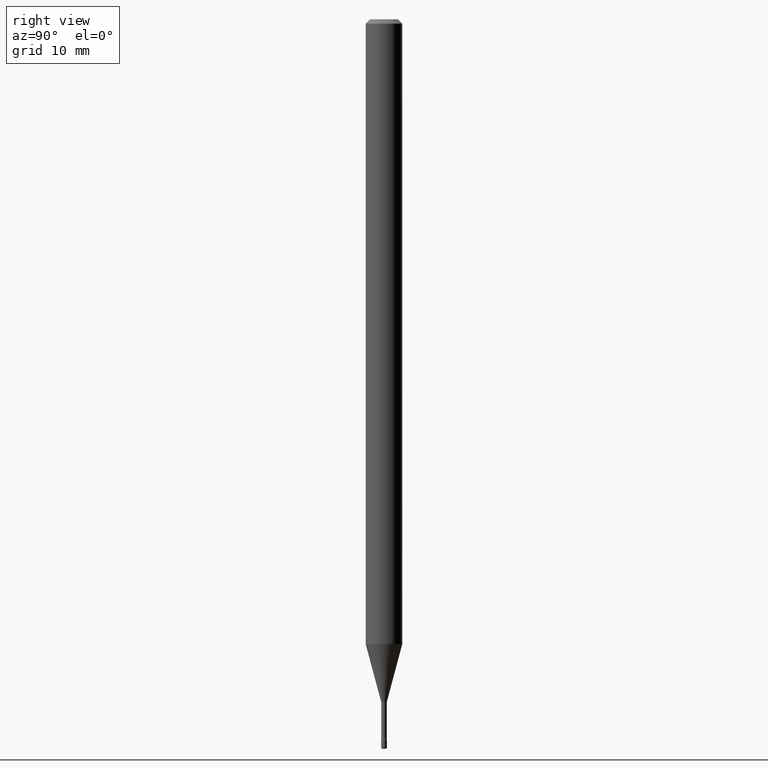
[diagram: clean part render]
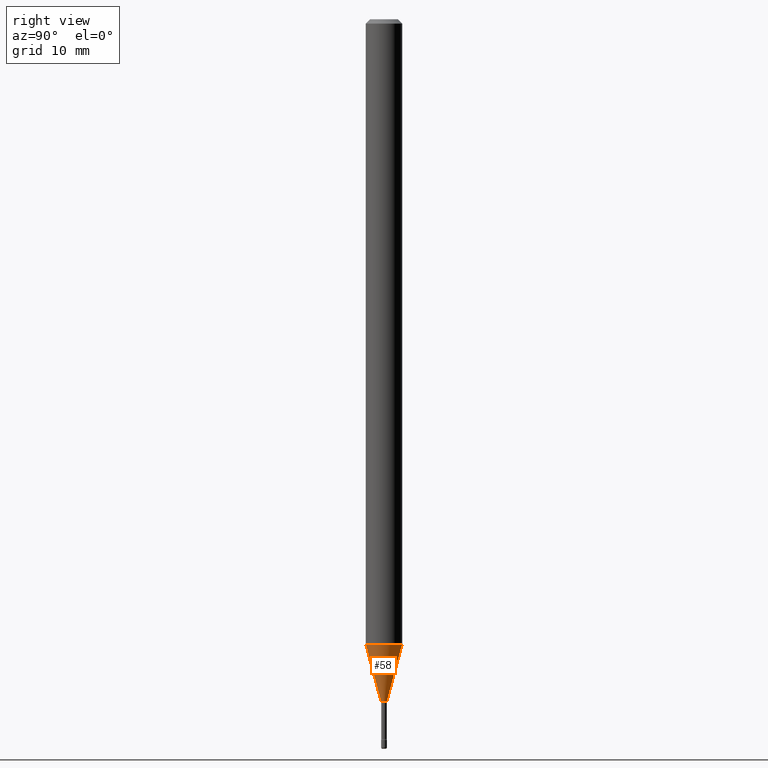
[diagram: same view with one face highlighted and labeled with its STEP entity id]
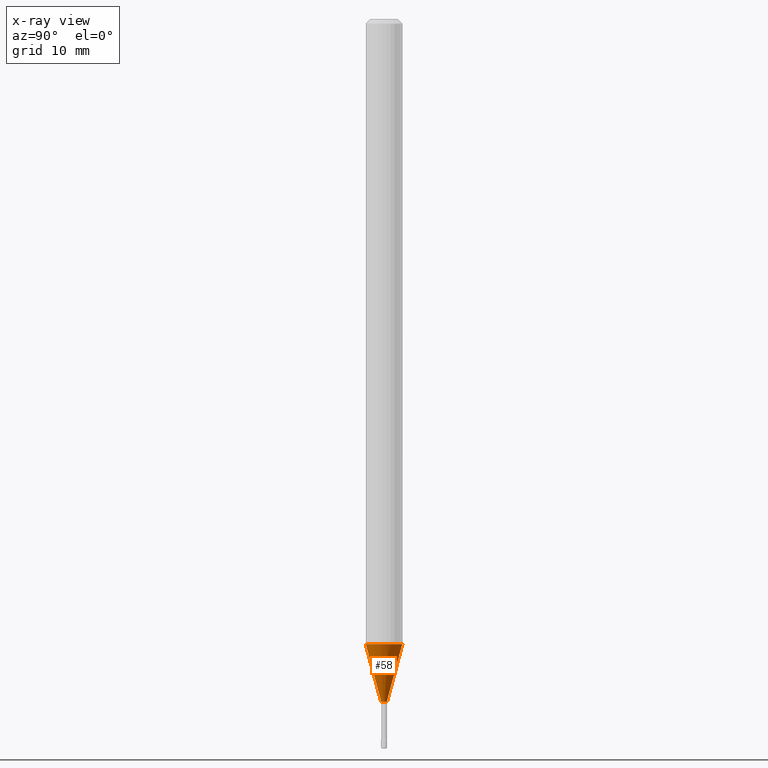
[diagram: x-ray of the same camera — body ghosted, the highlighted face saturated]
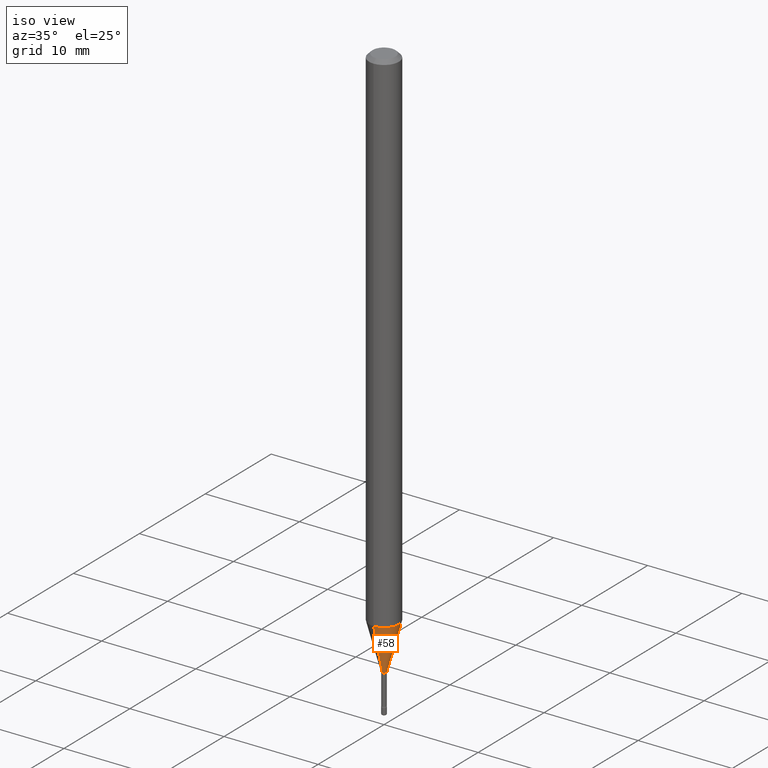
[diagram: same view with one face highlighted and labeled with its STEP entity id]
A machine part, right view. The second image highlights one B-rep face of the part: STEP entity #58.
The next image is the same camera in x-ray: the body ghosted, the highlighted face saturated — about 0% of this face is hidden behind the body in this view.
A second angle (iso view) of the same face is appended — the face is thin or edge-on in the first view.
In plain terms, the highlighted conical surface has half-angle 15 deg.
Its self-contained STEP definition (entity closure, byte-faithful):
#4 = DIRECTION ( 'NONE',  ( -1.807323732225328562E-15, -0.2588190451025179639, 0.9659258262890690894 ) ) ;
#17 = CARTESIAN_POINT ( 'NONE',  ( 7.042269065260616487E-17, 0.009911112605655818600, -2.338092501787273125 ) ) ;
#31 = FACE_OUTER_BOUND ( 'NONE', #343, .T. ) ;
#58 = ADVANCED_FACE ( 'NONE', ( #31 ), #221, .T. ) ;
#77 = AXIS2_PLACEMENT_3D ( 'NONE', #554, #157, #196 ) ;
#83 = VERTEX_POINT ( 'NONE', #341 ) ;
#85 = ORIENTED_EDGE ( 'NONE', *, *, #363, .T. ) ;
#101 = CARTESIAN_POINT ( 'NONE',  ( 2.572559502513606694E-16, 0.009911112605655818600, -2.338092501787273125 ) ) ;
#129 = CIRCLE ( 'NONE', #339, 0.06250000000000000000 ) ;
#142 = DIRECTION ( 'NONE',  ( -2.445504678334258331E-29, 3.491429967883887349E-15, 1.000000000000000000 ) ) ;
#144 = LINE ( 'NONE', #17, #268 ) ;
#157 = DIRECTION ( 'NONE',  ( -2.445504678334258331E-29, 3.491429967883887349E-15, 1.000000000000000000 ) ) ;
#170 = ORIENTED_EDGE ( 'NONE', *, *, #382, .T. ) ;
#196 = DIRECTION ( 'NONE',  ( -6.982962677686264344E-15, -1.000000000000000000, 0.000000000000000000 ) ) ;
#205 = DIRECTION ( 'NONE',  ( -6.982962677686265922E-15, -1.000000000000000000, 4.370956789862821150E-15 ) ) ;
#220 = CARTESIAN_POINT ( 'NONE',  ( -6.920892941964028521E-17, -0.009911112605672145817, -2.338092501787273125 ) ) ;
#221 = CONICAL_SURFACE ( 'NONE', #77, 0.009911112605663982209, 0.2617993877991500740 ) ;
#222 = AXIS2_PLACEMENT_3D ( 'NONE', #361, #142, #276 ) ;
#226 = CARTESIAN_POINT ( 'NONE',  ( -4.364351673553393088E-16, -0.06250000000000748013, -2.141828102118092936 ) ) ;
#231 = EDGE_CURVE ( 'NONE', #83, #337, #482, .T. ) ;
#268 = VECTOR ( 'NONE', #403, 39.37007874015748854 ) ;
#276 = DIRECTION ( 'NONE',  ( -6.982962677686264344E-15, -1.000000000000000000, 0.000000000000000000 ) ) ;
#289 = ORIENTED_EDGE ( 'NONE', *, *, #453, .F. ) ;
#291 = DIRECTION ( 'NONE',  ( -2.445504678334258331E-29, 3.491429967883887349E-15, 1.000000000000000000 ) ) ;
#337 = VERTEX_POINT ( 'NONE', #226 ) ;
#339 = AXIS2_PLACEMENT_3D ( 'NONE', #562, #291, #205 ) ;
#341 = CARTESIAN_POINT ( 'NONE',  ( -6.920892941964028521E-17, -0.009911112605672145817, -2.338092501787273125 ) ) ;
#343 = EDGE_LOOP ( 'NONE', ( #170, #85, #289, #386 ) ) ;
#361 = CARTESIAN_POINT ( 'NONE',  ( 5.717816151499027115E-29, -8.163286228424696892E-15, -2.338092501787273125 ) ) ;
#362 = CIRCLE ( 'NONE', #222, 0.009911112605663982209 ) ;
#363 = EDGE_CURVE ( 'NONE', #566, #375, #144, .T. ) ;
#375 = VERTEX_POINT ( 'NONE', #497 ) ;
#382 = EDGE_CURVE ( 'NONE', #83, #566, #362, .T. ) ;
#383 = VECTOR ( 'NONE', #4, 39.37007874015748854 ) ;
#386 = ORIENTED_EDGE ( 'NONE', *, *, #231, .F. ) ;
#403 = DIRECTION ( 'NONE',  ( 1.839019923739598738E-15, 0.2588190451025247363, 0.9659258262890673130 ) ) ;
#453 = EDGE_CURVE ( 'NONE', #337, #375, #129, .T. ) ;
#482 = LINE ( 'NONE', #220, #383 ) ;
#497 = CARTESIAN_POINT ( 'NONE',  ( 4.440892098501147796E-16, 0.06249999999999251293, -2.141828102118093380 ) ) ;
#554 = CARTESIAN_POINT ( 'NONE',  ( 5.717816151499027115E-29, -8.163286228424696892E-15, -2.338092501787273125 ) ) ;
#562 = CARTESIAN_POINT ( 'NONE',  ( 5.237850643917582024E-29, -7.478042821790981492E-15, -2.141828102118093380 ) ) ;
#566 = VERTEX_POINT ( 'NONE', #101 ) ;